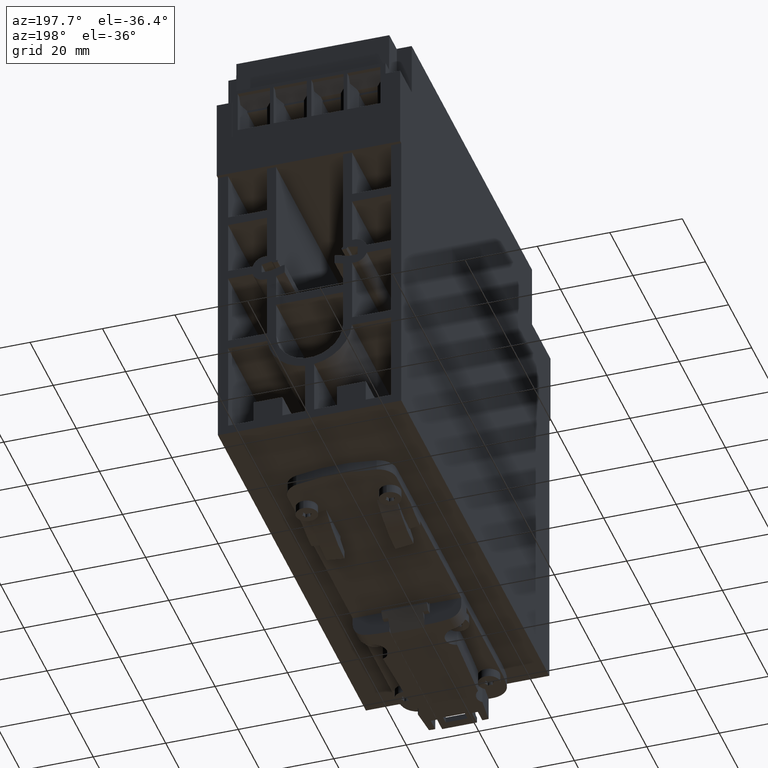
[diagram: clean part render]
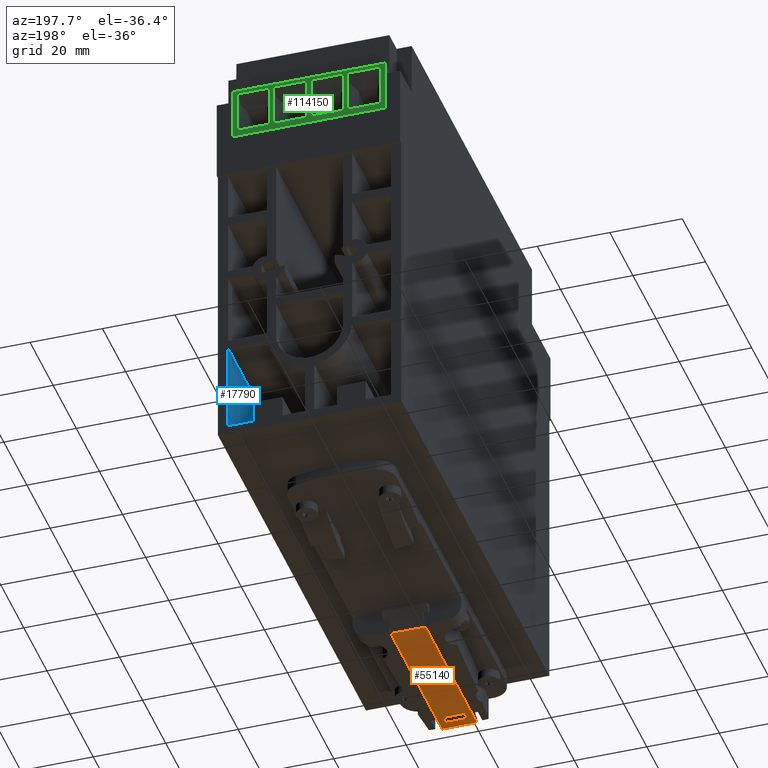
[diagram: same view with three faces highlighted in distinct colors, each labeled with its STEP entity id]
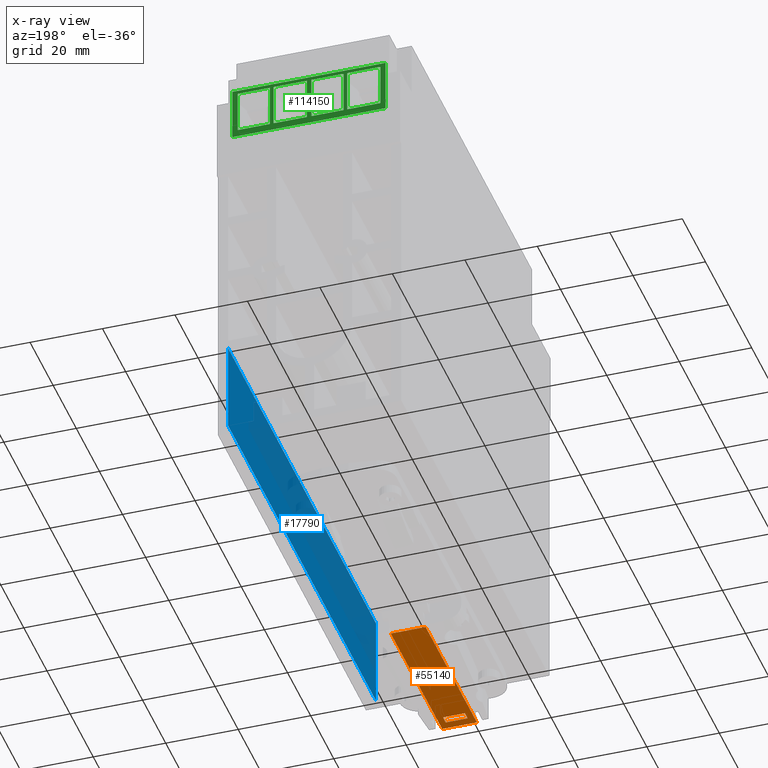
[diagram: x-ray of the same camera — body ghosted, the three highlighted faces saturated]
A machine part, auxiliary view with three faces highlighted in distinct colors.
The next image is the same camera in x-ray (body ghosted, the three faces saturated) — at least one of them is partly hidden behind the body in this view.
Their STEP definitions:

[orange] entity #55140 — the highlighted planar face has unit normal (0, 0, -1).
#34780=CARTESIAN_POINT('',(5.1,12.5,18.4499999999998));
#34790=VERTEX_POINT('',#34780);
#54270=CARTESIAN_POINT('',(0.299999999999994,12.5,-0.0750000000000028));
#54280=DIRECTION('',(0.,-1.,0.));
#54290=DIRECTION('',(0.,0.,1.));
#54300=AXIS2_PLACEMENT_3D('',#54270,#54280,#54290);
#54310=PLANE('',#54300);
#54320=CARTESIAN_POINT('',(-2.7,12.5,-42.4523651948));
#54330=DIRECTION('',(0.,0.,1.));
#54340=VECTOR('',#54330,1.);
#54350=LINE('',#54320,#54340);
#54360=CARTESIAN_POINT('',(-2.7,12.5,18.2));
#54370=VERTEX_POINT('',#54360);
#54380=CARTESIAN_POINT('',(-2.7,12.5,20.5));
#54390=VERTEX_POINT('',#54380);
#54400=EDGE_CURVE('',#54370,#54390,#54350,.T.);
#54410=ORIENTED_EDGE('',*,*,#54400,.T.);
#54420=CARTESIAN_POINT('',(25.3,12.5,18.2));
#54430=DIRECTION('',(-1.,0.,0.));
#54440=VECTOR('',#54430,1.);
#54450=LINE('',#54420,#54440);
#54460=CARTESIAN_POINT('',(3.3,12.5,18.2));
#54470=VERTEX_POINT('',#54460);
#54480=EDGE_CURVE('',#54470,#54370,#54450,.T.);
#54490=ORIENTED_EDGE('',*,*,#54480,.T.);
#54500=CARTESIAN_POINT('',(3.3,12.5,-42.4523651948));
#54510=DIRECTION('',(0.,0.,-1.));
#54520=VECTOR('',#54510,1.);
#54530=LINE('',#54500,#54520);
#54540=CARTESIAN_POINT('',(3.3,12.5,20.5));
#54550=VERTEX_POINT('',#54540);
#54560=EDGE_CURVE('',#54550,#54470,#54530,.T.);
#54570=ORIENTED_EDGE('',*,*,#54560,.T.);
#54580=CARTESIAN_POINT('',(25.3,12.5,20.5));
#54590=DIRECTION('',(1.,0.,0.));
#54600=VECTOR('',#54590,1.);
#54610=LINE('',#54580,#54600);
#54620=EDGE_CURVE('',#54390,#54550,#54610,.T.);
#54630=ORIENTED_EDGE('',*,*,#54620,.T.);
#54640=EDGE_LOOP('',(#54630,#54570,#54490,#54410));
#54650=FACE_BOUND('',#54640,.T.);
#54660=CARTESIAN_POINT('',(-4.5,12.5,-42.4523651948));
#54670=DIRECTION('',(0.,0.,1.));
#54680=VECTOR('',#54670,1.);
#54690=LINE('',#54660,#54680);
#54700=CARTESIAN_POINT('',(-4.5,12.5,18.4499999999998));
#54710=VERTEX_POINT('',#54700);
#54720=CARTESIAN_POINT('',(-4.5,12.5,23.));
#54730=VERTEX_POINT('',#54720);
#54740=EDGE_CURVE('',#54710,#54730,#54690,.T.);
#54750=ORIENTED_EDGE('',*,*,#54740,.F.);
#54760=CARTESIAN_POINT('',(25.3,12.5,23.));
#54770=DIRECTION('',(-1.,0.,0.));
#54780=VECTOR('',#54770,1.);
#54790=LINE('',#54760,#54780);
#54800=CARTESIAN_POINT('',(5.1,12.5,23.));
#54810=VERTEX_POINT('',#54800);
#54820=EDGE_CURVE('',#54810,#54730,#54790,.T.);
#54830=ORIENTED_EDGE('',*,*,#54820,.T.);
#54840=CARTESIAN_POINT('',(5.1,12.5,-42.4523651948));
#54850=DIRECTION('',(0.,0.,1.));
#54860=VECTOR('',#54850,1.);
#54870=LINE('',#54840,#54860);
#54880=EDGE_CURVE('',#34790,#54810,#54870,.T.);
#54890=ORIENTED_EDGE('',*,*,#54880,.T.);
#54900=CARTESIAN_POINT('',(5.1,12.5,-42.4523651948));
#54910=DIRECTION('',(0.,0.,-1.));
#54920=VECTOR('',#54910,1.);
#54930=LINE('',#54900,#54920);
#54940=CARTESIAN_POINT('',(5.1,12.5,-21.3999999999998));
#54950=VERTEX_POINT('',#54940);
#54960=EDGE_CURVE('',#34790,#54950,#54930,.T.);
#54970=ORIENTED_EDGE('',*,*,#54960,.F.);
#54980=CARTESIAN_POINT('',(25.3,12.5,-21.3999999999998));
#54990=DIRECTION('',(1.,0.,-4.07837029454166E-17));
#55000=VECTOR('',#54990,1.);
#55010=LINE('',#54980,#55000);
#55020=CARTESIAN_POINT('',(-4.5,12.5,-21.3999999999998));
#55030=VERTEX_POINT('',#55020);
#55040=EDGE_CURVE('',#55030,#54950,#55010,.T.);
#55050=ORIENTED_EDGE('',*,*,#55040,.T.);
#55060=CARTESIAN_POINT('',(-4.5,12.5,-42.4523651948));
#55070=DIRECTION('',(0.,0.,1.));
#55080=VECTOR('',#55070,1.);
#55090=LINE('',#55060,#55080);
#55100=EDGE_CURVE('',#55030,#54710,#55090,.T.);
#55110=ORIENTED_EDGE('',*,*,#55100,.F.);
#55120=EDGE_LOOP('',(#55110,#55050,#54970,#54890,#54830,#54750));
#55130=FACE_OUTER_BOUND('',#55120,.T.);
#55140=ADVANCED_FACE('',(#54650,#55130),#54310,.T.);

[blue] entity #17790 — the highlighted planar face has unit normal (-1, 0, 0).
#7040=CARTESIAN_POINT('',(22.8,24.5,21.35));
#7050=VERTEX_POINT('',#7040);
#7080=CARTESIAN_POINT('',(22.8,0.,21.35));
#7090=DIRECTION('',(0.,-1.,0.));
#7100=VECTOR('',#7090,1.);
#7110=LINE('',#7080,#7100);
#7120=CARTESIAN_POINT('',(22.8,49.75,21.35));
#7130=VERTEX_POINT('',#7120);
#7140=EDGE_CURVE('',#7130,#7050,#7110,.T.);
#11050=CARTESIAN_POINT('',(22.8,24.5,-106.65));
#11060=VERTEX_POINT('',#11050);
#11620=CARTESIAN_POINT('',(22.8,49.75,-106.65));
#11630=VERTEX_POINT('',#11620);
#11660=CARTESIAN_POINT('',(22.8,0.,-106.65));
#11670=DIRECTION('',(0.,1.,0.));
#11680=VECTOR('',#11670,1.);
#11690=LINE('',#11660,#11680);
#11700=EDGE_CURVE('',#11060,#11630,#11690,.T.);
#17580=CARTESIAN_POINT('',(22.8,23.867427,21.426323));
#17590=DIRECTION('',(-1.,0.,0.));
#17600=DIRECTION('',(0.,1.,0.));
#17610=AXIS2_PLACEMENT_3D('',#17580,#17590,#17600);
#17620=PLANE('',#17610);
#17630=CARTESIAN_POINT('',(22.8,24.5,-0.650000000000006));
#17640=DIRECTION('',(0.,0.,-1.));
#17650=VECTOR('',#17640,1.);
#17660=LINE('',#17630,#17650);
#17670=EDGE_CURVE('',#7050,#11060,#17660,.T.);
#17680=ORIENTED_EDGE('',*,*,#17670,.F.);
#17690=ORIENTED_EDGE('',*,*,#11700,.F.);
#17700=CARTESIAN_POINT('',(22.8,49.75,-0.650000000000006));
#17710=DIRECTION('',(0.,0.,-1.));
#17720=VECTOR('',#17710,1.);
#17730=LINE('',#17700,#17720);
#17740=EDGE_CURVE('',#7130,#11630,#17730,.T.);
#17750=ORIENTED_EDGE('',*,*,#17740,.T.);
#17760=ORIENTED_EDGE('',*,*,#7140,.F.);
#17770=EDGE_LOOP('',(#17760,#17750,#17690,#17680));
#17780=FACE_OUTER_BOUND('',#17770,.T.);
#17790=ADVANCED_FACE('',(#17780),#17620,.T.);

[green] entity #114150 — the highlighted planar face has unit normal (0, 1, 0).
#112030=CARTESIAN_POINT('',(21.3,132.59999999996,-107.50000000007));
#112040=VERTEX_POINT('',#112030);
#112070=CARTESIAN_POINT('',(21.3,0.,-107.50000000007));
#112080=DIRECTION('',(0.,1.,0.));
#112090=VECTOR('',#112080,1.);
#112100=LINE('',#112070,#112090);
#112110=CARTESIAN_POINT('',(21.3,129.,-107.50000000007));
#112120=VERTEX_POINT('',#112110);
#112130=EDGE_CURVE('',#112120,#112040,#112100,.T.);
#112330=CARTESIAN_POINT('',(22.356323,118.453677000001,-107.50000000007)
);
#112340=DIRECTION('',(0.,0.,-1.));
#112350=DIRECTION('',(-1.,0.,0.));
#112360=AXIS2_PLACEMENT_3D('',#112330,#112340,#112350);
#112370=PLANE('',#112360);
#112380=CARTESIAN_POINT('',(9.96000000000001,0.,-107.50000000007));
#112390=DIRECTION('',(0.,1.,0.));
#112400=VECTOR('',#112390,1.);
#112410=LINE('',#112380,#112400);
#112420=CARTESIAN_POINT('',(9.96000000000001,119.8,-107.50000000007));
#112430=VERTEX_POINT('',#112420);
#112440=CARTESIAN_POINT('',(9.96000000000001,131.59999999996,
-107.50000000007));
#112450=VERTEX_POINT('',#112440);
#112460=EDGE_CURVE('',#112430,#112450,#112410,.T.);
#112470=ORIENTED_EDGE('',*,*,#112460,.T.);
#112480=CARTESIAN_POINT('',(0.299999999999997,119.8,-107.50000000007));
#112490=DIRECTION('',(1.,0.,0.));
#112500=VECTOR('',#112490,1.);
#112510=LINE('',#112480,#112500);
#112520=CARTESIAN_POINT('',(0.800000000000006,119.8,-107.50000000007));
#112530=VERTEX_POINT('',#112520);
#112540=EDGE_CURVE('',#112530,#112430,#112510,.T.);
#112550=ORIENTED_EDGE('',*,*,#112540,.T.);
#112560=CARTESIAN_POINT('',(0.800000000000006,0.,-107.50000000007));
#112570=DIRECTION('',(0.,-1.,0.));
#112580=VECTOR('',#112570,1.);
#112590=LINE('',#112560,#112580);
#112600=CARTESIAN_POINT('',(0.800000000000006,131.59999999996,
-107.50000000007));
#112610=VERTEX_POINT('',#112600);
#112620=EDGE_CURVE('',#112610,#112530,#112590,.T.);
#112630=ORIENTED_EDGE('',*,*,#112620,.T.);
#112640=CARTESIAN_POINT('',(0.299999999999997,131.59999999996,
-107.50000000007));
#112650=DIRECTION('',(1.,0.,0.));
#112660=VECTOR('',#112650,1.);
#112670=LINE('',#112640,#112660);
#112680=EDGE_CURVE('',#112610,#112450,#112670,.T.);
#112690=ORIENTED_EDGE('',*,*,#112680,.F.);
#112700=EDGE_LOOP('',(#112690,#112630,#112550,#112470));
#112710=FACE_BOUND('',#112700,.T.);
#112720=CARTESIAN_POINT('',(-9.35999999999999,0.,-107.50000000007));
#112730=DIRECTION('',(0.,-1.,0.));
#112740=VECTOR('',#112730,1.);
#112750=LINE('',#112720,#112740);
#112760=CARTESIAN_POINT('',(-9.35999999999999,131.59999999996,
-107.50000000007));
#112770=VERTEX_POINT('',#112760);
#112780=CARTESIAN_POINT('',(-9.35999999999999,119.8,-107.50000000007));
#112790=VERTEX_POINT('',#112780);
#112800=EDGE_CURVE('',#112770,#112790,#112750,.T.);
#112810=ORIENTED_EDGE('',*,*,#112800,.T.);
#112820=CARTESIAN_POINT('',(0.299999999999997,131.59999999996,
-107.50000000007));
#112830=DIRECTION('',(1.,0.,0.));
#112840=VECTOR('',#112830,1.);
#112850=LINE('',#112820,#112840);
#112860=CARTESIAN_POINT('',(-0.449999999999994,131.59999999996,
-107.50000000007));
#112870=VERTEX_POINT('',#112860);
#112880=EDGE_CURVE('',#112770,#112870,#112850,.T.);
#112890=ORIENTED_EDGE('',*,*,#112880,.F.);
#112900=CARTESIAN_POINT('',(-0.449999999999994,0.,-107.50000000007));
#112910=DIRECTION('',(0.,1.,0.));
#112920=VECTOR('',#112910,1.);
#112930=LINE('',#112900,#112920);
#112940=CARTESIAN_POINT('',(-0.449999999999994,119.8,-107.50000000007));
#112950=VERTEX_POINT('',#112940);
#112960=EDGE_CURVE('',#112950,#112870,#112930,.T.);
#112970=ORIENTED_EDGE('',*,*,#112960,.T.);
#112980=CARTESIAN_POINT('',(0.299999999999997,119.8,-107.50000000007));
#112990=DIRECTION('',(-1.,0.,0.));
#113000=VECTOR('',#112990,1.);
#113010=LINE('',#112980,#113000);
#113020=EDGE_CURVE('',#112950,#112790,#113010,.T.);
#113030=ORIENTED_EDGE('',*,*,#113020,.F.);
#113040=EDGE_LOOP('',(#113030,#112970,#112890,#112810));
#113050=FACE_BOUND('',#113040,.T.);
#113060=CARTESIAN_POINT('',(-10.36,0.,-107.50000000007));
#113070=DIRECTION('',(0.,1.,0.));
#113080=VECTOR('',#113070,1.);
#113090=LINE('',#113060,#113080);
#113100=CARTESIAN_POINT('',(-10.36,119.8,-107.50000000007));
#113110=VERTEX_POINT('',#113100);
#113120=CARTESIAN_POINT('',(-10.36,131.59999999996,-107.50000000007));
#113130=VERTEX_POINT('',#113120);
#113140=EDGE_CURVE('',#113110,#113130,#113090,.T.);
#113150=ORIENTED_EDGE('',*,*,#113140,.T.);
#113160=CARTESIAN_POINT('',(0.299999999999997,119.8,-107.50000000007));
#113170=DIRECTION('',(1.,0.,0.));
#113180=VECTOR('',#113170,1.);
#113190=LINE('',#113160,#113180);
#113200=CARTESIAN_POINT('',(-19.52,119.8,-107.50000000007));
#113210=VERTEX_POINT('',#113200);
#113220=EDGE_CURVE('',#113210,#113110,#113190,.T.);
#113230=ORIENTED_EDGE('',*,*,#113220,.T.);
#113240=CARTESIAN_POINT('',(-19.52,0.,-107.50000000007));
#113250=DIRECTION('',(0.,-1.,0.));
#113260=VECTOR('',#113250,1.);
#113270=LINE('',#113240,#113260);
#113280=CARTESIAN_POINT('',(-19.52,131.59999999996,-107.50000000007));
#113290=VERTEX_POINT('',#113280);
#113300=EDGE_CURVE('',#113290,#113210,#113270,.T.);
#113310=ORIENTED_EDGE('',*,*,#113300,.T.);
#113320=CARTESIAN_POINT('',(0.299999999999997,131.59999999996,
-107.50000000007));
#113330=DIRECTION('',(1.,0.,0.));
#113340=VECTOR('',#113330,1.);
#113350=LINE('',#113320,#113340);
#113360=EDGE_CURVE('',#113290,#113130,#113350,.T.);
#113370=ORIENTED_EDGE('',*,*,#113360,.F.);
#113380=EDGE_LOOP('',(#113370,#113310,#113230,#113150));
#113390=FACE_BOUND('',#113380,.T.);
#113400=CARTESIAN_POINT('',(10.96,0.,-107.50000000007));
#113410=DIRECTION('',(0.,-1.,0.));
#113420=VECTOR('',#113410,1.);
#113430=LINE('',#113400,#113420);
#113440=CARTESIAN_POINT('',(10.96,131.59999999996,-107.50000000007));
#113450=VERTEX_POINT('',#113440);
#113460=CARTESIAN_POINT('',(10.96,119.8,-107.50000000007));
#113470=VERTEX_POINT('',#113460);
#113480=EDGE_CURVE('',#113450,#113470,#113430,.T.);
#113490=ORIENTED_EDGE('',*,*,#113480,.T.);
#113500=CARTESIAN_POINT('',(0.299999999999997,131.59999999996,
-107.50000000007));
#113510=DIRECTION('',(1.,0.,0.));
#113520=VECTOR('',#113510,1.);
#113530=LINE('',#113500,#113520);
#113540=CARTESIAN_POINT('',(19.87,131.59999999996,-107.50000000007));
#113550=VERTEX_POINT('',#113540);
#113560=EDGE_CURVE('',#113450,#113550,#113530,.T.);
#113570=ORIENTED_EDGE('',*,*,#113560,.F.);
#113580=CARTESIAN_POINT('',(19.87,0.,-107.50000000007));
#113590=DIRECTION('',(0.,1.,0.));
#113600=VECTOR('',#113590,1.);
#113610=LINE('',#113580,#113600);
#113620=CARTESIAN_POINT('',(19.87,119.8,-107.50000000007));
#113630=VERTEX_POINT('',#113620);
#113640=EDGE_CURVE('',#113630,#113550,#113610,.T.);
#113650=ORIENTED_EDGE('',*,*,#113640,.T.);
#113660=CARTESIAN_POINT('',(0.299999999999997,119.8,-107.50000000007));
#113670=DIRECTION('',(-1.,0.,0.));
#113680=VECTOR('',#113670,1.);
#113690=LINE('',#113660,#113680);
#113700=EDGE_CURVE('',#113630,#113470,#113690,.T.);
#113710=ORIENTED_EDGE('',*,*,#113700,.F.);
#113720=EDGE_LOOP('',(#113710,#113650,#113570,#113490));
#113730=FACE_BOUND('',#113720,.T.);
#113740=CARTESIAN_POINT('',(-20.9,0.,-107.50000000007));
#113750=DIRECTION('',(0.,-1.,0.));
#113760=VECTOR('',#113750,1.);
#113770=LINE('',#113740,#113760);
#113780=CARTESIAN_POINT('',(-20.9,129.,-107.50000000007));
#113790=VERTEX_POINT('',#113780);
#113800=CARTESIAN_POINT('',(-20.9,117.8,-107.50000000007));
#113810=VERTEX_POINT('',#113800);
#113820=EDGE_CURVE('',#113790,#113810,#113770,.T.);
#113830=ORIENTED_EDGE('',*,*,#113820,.F.);
#113840=CARTESIAN_POINT('',(0.299999999999997,117.8,-107.50000000007));
#113850=DIRECTION('',(1.,0.,0.));
#113860=VECTOR('',#113850,1.);
#113870=LINE('',#113840,#113860);
#113880=CARTESIAN_POINT('',(21.3,117.8,-107.50000000007));
#113890=VERTEX_POINT('',#113880);
#113900=EDGE_CURVE('',#113810,#113890,#113870,.T.);
#113910=ORIENTED_EDGE('',*,*,#113900,.F.);
#113920=CARTESIAN_POINT('',(21.3,0.,-107.50000000007));
#113930=DIRECTION('',(0.,-1.,0.));
#113940=VECTOR('',#113930,1.);
#113950=LINE('',#113920,#113940);
#113960=EDGE_CURVE('',#112120,#113890,#113950,.T.);
#113970=ORIENTED_EDGE('',*,*,#113960,.T.);
#113980=ORIENTED_EDGE('',*,*,#112130,.F.);
#113990=CARTESIAN_POINT('',(0.299999999999997,132.59999999996,
-107.50000000007));
#114000=DIRECTION('',(-1.,0.,0.));
#114010=VECTOR('',#114000,1.);
#114020=LINE('',#113990,#114010);
#114030=CARTESIAN_POINT('',(-20.9,132.59999999996,-107.50000000007));
#114040=VERTEX_POINT('',#114030);
#114050=EDGE_CURVE('',#112040,#114040,#114020,.T.);
#114060=ORIENTED_EDGE('',*,*,#114050,.F.);
#114070=CARTESIAN_POINT('',(-20.9,0.,-107.50000000007));
#114080=DIRECTION('',(0.,1.,0.));
#114090=VECTOR('',#114080,1.);
#114100=LINE('',#114070,#114090);
#114110=EDGE_CURVE('',#113790,#114040,#114100,.T.);
#114120=ORIENTED_EDGE('',*,*,#114110,.T.);
#114130=EDGE_LOOP('',(#114120,#114060,#113980,#113970,#113910,#113830));
#114140=FACE_OUTER_BOUND('',#114130,.T.);
#114150=ADVANCED_FACE('',(#112710,#113050,#113390,#113730,#114140),
#112370,.T.);